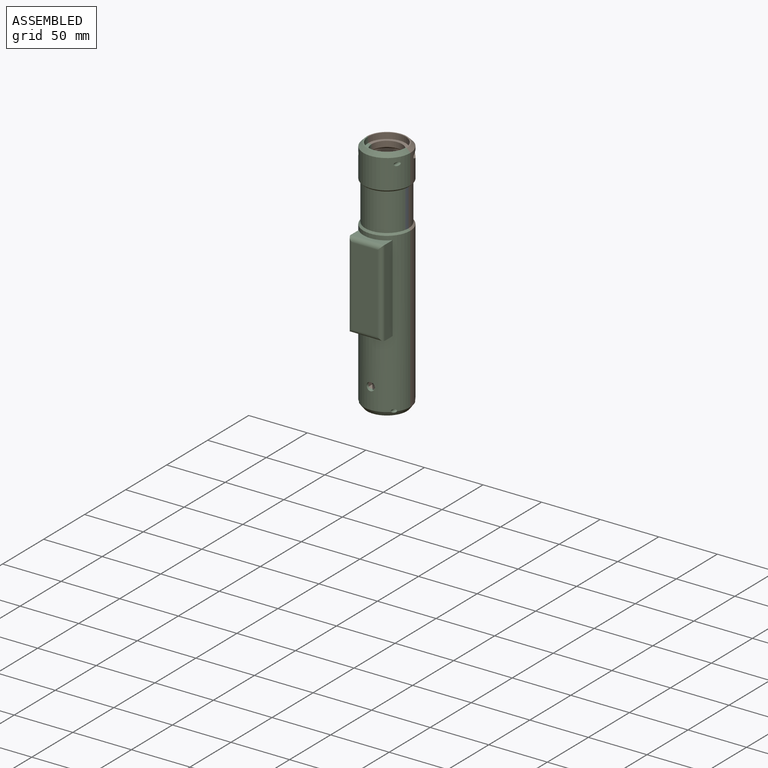
[diagram: assembled view]
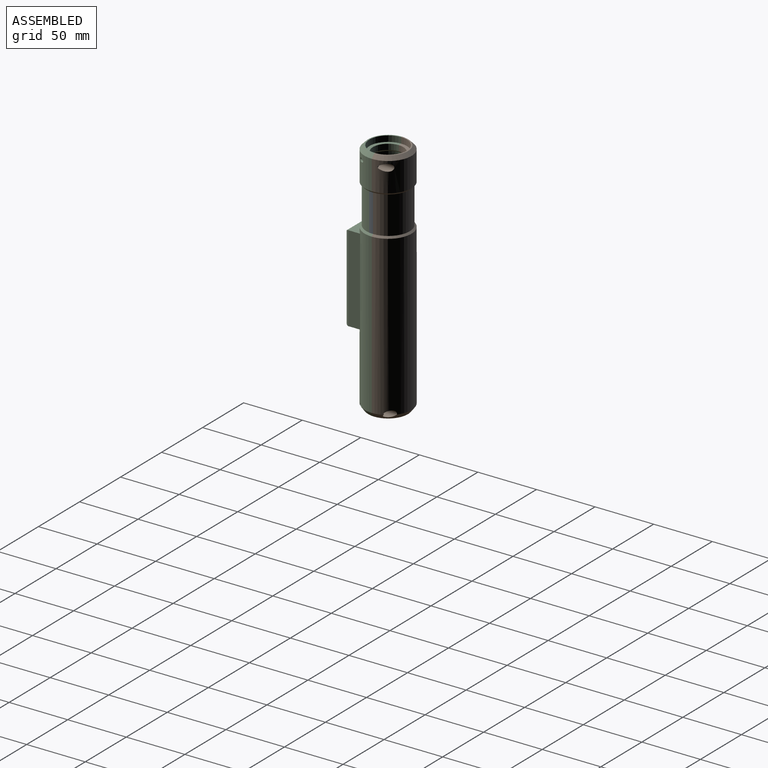
[diagram: assembled view, second angle]
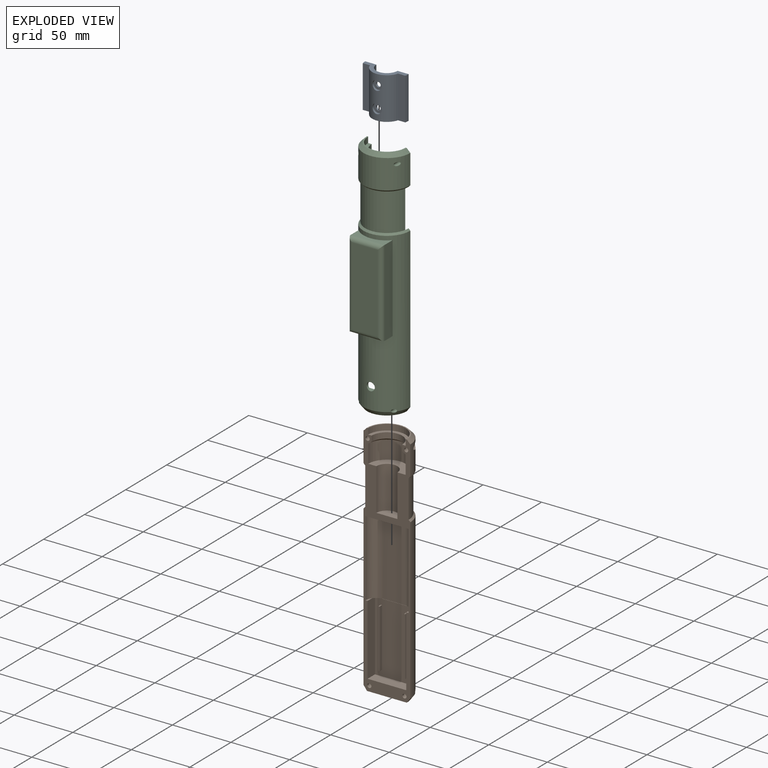
[diagram: exploded view]
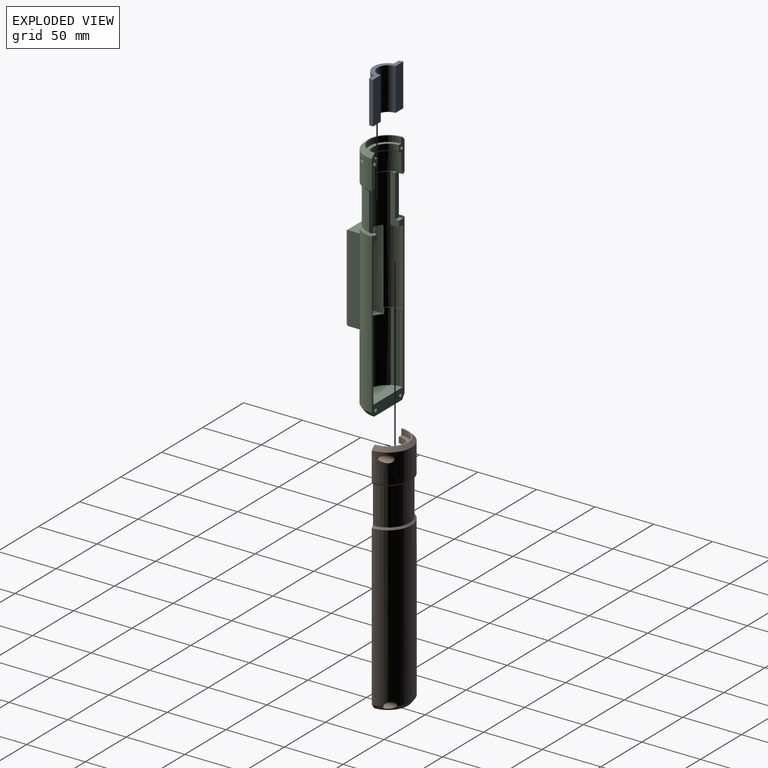
[diagram: exploded view, second angle]
ASSEMBLY  parts=3 mates=4
PART A: 16 faces, bbox 37x12.5x36 mm
  f0: cylinder r=12.5mm len=36mm, axis (0,0,-1), area 1056.4mm2, adj f4,f5,f8,f9,f12,f14
  f1: cylinder r=9mm len=36mm, axis (0,0,-1), area 992.6mm2, adj f2,f7,f8,f9,f10,f11
  f2: plane 36x9.5mm, normal (0,-1,0), area 342mm2, adj f1,f3,f8,f9
  f3: cylinder r=18.5mm len=36mm, axis (0,0,-1), area 126.8mm2, adj f2,f4,f8,f9
  f4: plane 36x6.17mm, normal (0,1,0), area 222mm2, adj f0,f3,f8,f9
  f5: plane 36x6.17mm, normal (0,1,0), area 222mm2, adj f0,f6,f8,f9
  f6: cylinder r=18.5mm len=36mm, axis (0,0,-1), area 126.8mm2, adj f5,f7,f8,f9
  f7: plane 36x9.5mm, normal (0,-1,0), area 342mm2, adj f1,f6,f8,f9
  f8: plane 37x12.5mm, normal (0,0,1), area 160.6mm2, adj f0,f1,f2,f3,f4,f5,f6,f7
  f9: plane 37x12.5mm, normal (0,0,-1), area 160.6mm2, adj f0,f1,f2,f3,f4,f5,f6,f7
  f10: cylinder r=2mm len=4mm, axis (0,1,0), area 20.3mm2, adj f1,f15
  f11: cylinder r=2mm len=4mm, axis (0,1,0), area 20.3mm2, adj f1,f13
  f12: cylinder r=4mm len=8mm, axis (0,1,0), area 42.1mm2, adj f0,f13
  f13: plane 8x8mm, normal (0,1,0), area 37.7mm2, adj f11,f12
  f14: cylinder r=4mm len=8mm, axis (0,1,0), area 42.1mm2, adj f0,f15
  f15: plane 8x8mm, normal (0,1,0), area 37.7mm2, adj f10,f14
PART B: 53 faces, bbox 40x20x203 mm
  f0: plane 203x40mm, normal (0,-1,0), area 2095.5mm2, adj f1,f2,f3,f4,f6,f7,f8,f10
  f1: cylinder r=20mm len=40mm, axis (0,0,1), area 1461.4mm2, adj f0,f38,f43,f45,f52
  f2: cylinder r=20mm len=136mm, axis (0,0,1), area 8491.3mm2, adj f0,f37,f39,f41,f51
  f3: cone r=16mm half-angle=54deg, axis (0,0,-1), area 169mm2, adj f0,f29,f33
  f4: plane 5.6x1.9mm, normal (0,0,1), area 7.3mm2, adj f0,f8,f23
  f5: plane 22.22x0.2mm, normal (0,0,1), area 4.2mm2, adj f8,f9,f10,f26
  f6: plane 34x17mm, normal (0,0,-1), area 454mm2, adj f0,f51
  f7: plane 34x17mm, normal (0,0,1), area 51.8mm2, adj f0,f31,f52
  f8: cylinder r=9.2mm len=65mm, axis (0,0,1), area 939.3mm2, adj f0,f4,f5,f9,f12,f17
  f9: plane 65x18.4mm, normal (0,-1,0), area 1196mm2, adj f5,f8,f10,f12
  f10: cylinder r=9.2mm len=65mm, axis (0,0,1), area 939.3mm2, adj f0,f5,f9,f11,f12,f13
  f11: plane 5.6x1.9mm, normal (0,0,1), area 7.3mm2, adj f0,f10,f18
  f12: plane 36.8x9.2mm, normal (0,0,-1), area 302.2mm2, adj f0,f8,f9,f10
  f13: plane 5.39x3.4mm, normal (0,0,-1), area 6.7mm2, adj f10,f18,f26
  f14: plane 3x1mm, normal (0,0,1), area 3mm2, adj f15,f25,f26,f27
  f15: plane 50x3mm, normal (1,0,0), area 150mm2, adj f14,f16,f26,f27
  f16: plane 3x1mm, normal (0,0,-1), area 3mm2, adj f15,f25,f26,f27
  f17: plane 5.39x3.4mm, normal (0,0,-1), area 6.7mm2, adj f8,f23,f26
  f18: plane 60x9mm, normal (1,0,0), area 540mm2, adj f0,f11,f13,f19,f26
  f19: plane 33x9mm, normal (0,0,1), area 297mm2, adj f0,f18,f23,f26
  f20: plane 3x1mm, normal (0,0,-1), area 3mm2, adj f21,f24,f26,f28
  f21: plane 50x3mm, normal (-1,0,0), area 150mm2, adj f20,f22,f26,f28
  f22: plane 3x1mm, normal (0,0,1), area 3mm2, adj f21,f24,f26,f28
  f23: plane 60x9mm, normal (-1,0,0), area 540mm2, adj f0,f4,f17,f19,f26
  f24: plane 50x3mm, normal (1,0,0), area 150mm2, adj f20,f22,f26,f28
  f25: plane 50x3mm, normal (-1,0,0), area 150mm2, adj f14,f16,f26,f27
  f26: plane 60x33mm, normal (0,-1,0), area 1880mm2, adj f5,f13,f14,f15,f16,f17,f18,f19
  f27: plane 50x1mm, normal (0,-1,0), area 50mm2, adj f14,f15,f16,f25
  f28: plane 50x1mm, normal (0,-1,0), area 50mm2, adj f20,f21,f22,f24
  f29: cylinder r=16mm len=32mm, axis (0,0,-1), area 779.1mm2, adj f0,f3,f30
  f30: plane 32x16mm, normal (0,0,1), area 274.9mm2, adj f0,f29,f34
  f31: cylinder r=16mm len=32mm, axis (0,0,1), area 251.3mm2, adj f0,f7,f32
  f32: plane 32x16mm, normal (0,0,1), area 136.7mm2, adj f0,f31,f33
  f33: cylinder r=13mm len=26mm, axis (0,0,1), area 196.8mm2, adj f0,f3,f32
  f34: cylinder r=9mm len=36mm, axis (0,0,1), area 1017.9mm2, adj f0,f30,f35
  f35: plane 18x9mm, normal (0,0,1), area 127.2mm2, adj f0,f34
  f36: cylinder r=18.5mm len=37mm, axis (0,0,1), area 1859.8mm2, adj f0,f37,f38
  f37: cone r=18.5mm half-angle=45deg, axis (0,0,-1), area 128.3mm2, adj f0,f2,f36
  f38: cone r=20.5mm half-angle=45deg, axis (0,0,1), area 128.3mm2, adj f0,f1,f36
  f39: cylinder r=3mm len=14mm, axis (0,1,0), area 186.5mm2, adj f2,f40,f51
  f40: plane 6x6mm, normal (0,1,0), area 18.7mm2, adj f39,f50
  f41: cylinder r=3mm len=14mm, axis (0,1,0), area 186.5mm2, adj f2,f42,f51
  f42: plane 6x6mm, normal (0,1,0), area 18.7mm2, adj f41,f49
  f43: cylinder r=3mm len=12.76mm, axis (0,1,0), area 160.8mm2, adj f1,f44
  f44: plane 6x6mm, normal (0,1,0), area 18.7mm2, adj f43,f48
  f45: cylinder r=3mm len=12.76mm, axis (0,1,0), area 160.7mm2, adj f1,f46
  f46: plane 6x6mm, normal (0,1,0), area 18.7mm2, adj f45,f47
  f47: cylinder r=1.75mm len=3.5mm, axis (0,1,0), area 22mm2, adj f0,f46
  f48: cylinder r=1.75mm len=3.5mm, axis (0,1,0), area 22mm2, adj f0,f44
  f49: cylinder r=1.75mm len=3.5mm, axis (0,1,0), area 22mm2, adj f0,f42
  f50: cylinder r=1.75mm len=3.5mm, axis (0,1,0), area 22mm2, adj f0,f40
  f51: cone r=20mm half-angle=36.9deg, axis (0,0,1), area 243.8mm2, adj f0,f2,f6,f39,f41
  f52: cone r=17mm half-angle=45deg, axis (0,0,-1), area 246.6mm2, adj f0,f1,f7
PART C: 70 faces, bbox 40x27x203 mm
  f0: cylinder r=18.5mm len=36.33mm, axis (0,0,1), area 1634.5mm2, adj f37,f38,f50,f55
  f1: plane 141.5x40mm, normal (0,-1,0), area 870.6mm2, adj f7,f12,f14,f21,f24,f25,f26,f31
  f2: plane 29.5x7mm, normal (0,-1,0), area 118mm2, adj f6,f8,f15,f33,f34,f35,f36,f38
  f3: plane 31.23x12.5mm, normal (0,0,1), area 28.7mm2, adj f33,f46,f47,f48,f50,f55
  f4: plane 60x0.91mm, normal (0,-1,0), area 54.7mm2, adj f23,f29,f31,f32,f45
  f5: plane 29.5x7mm, normal (0,-1,0), area 118mm2, adj f6,f8,f15,f33,f34,f35,f36,f38
  f6: cylinder r=20mm len=40mm, axis (0,0,1), area 1545.2mm2, adj f2,f5,f38,f41,f42,f69
  f7: cylinder r=20mm len=136mm, axis (0,0,1), area 6090.5mm2, adj f1,f16,f17,f18,f19,f37,f39,f40
  f8: cone r=16mm half-angle=54deg, axis (0,0,-1), area 169mm2, adj f2,f5,f33,f36
  f9: plane 70x9.05mm, normal (1,0,0), area 596.4mm2, adj f10,f13,f21,f25,f45,f61
  f10: plane 26x9.05mm, normal (0,0,1), area 135.7mm2, adj f9,f11,f45,f63
  f11: plane 70x9.05mm, normal (-1,0,0), area 596.4mm2, adj f10,f21,f23,f24,f45,f62
  f12: plane 8.14x1.9mm, normal (0,0,1), area 3.2mm2, adj f1,f24,f32,f43
  f13: plane 4.02x3.05mm, normal (0,0,1), area 1.9mm2, adj f9,f25,f28,f45
  f14: plane 34x17mm, normal (0,0,-1), area 454mm2, adj f1,f68
  f15: plane 34x17mm, normal (0,0,1), area 51.8mm2, adj f2,f5,f34,f69
  f16: plane 74x9.73mm, normal (1,0,0), area 719.7mm2, adj f7,f17,f19,f64
  f17: plane 29x9.73mm, normal (0,0,1), area 157.3mm2, adj f7,f16,f18,f65
  f18: plane 74x9.73mm, normal (-1,0,0), area 719.7mm2, adj f7,f17,f19,f67
  f19: plane 29x9.73mm, normal (0,0,-1), area 157.3mm2, adj f7,f16,f18,f66
  f20: plane 67x22mm, normal (0,1,0), area 1474mm2, adj f64,f65,f66,f67
  f21: plane 36.8x21.5mm, normal (0,0,-1), area 299.1mm2, adj f1,f9,f11,f24,f25,f46,f47,f48
  f22: plane 63x19mm, normal (0,-1,0), area 1197mm2, adj f60,f61,f62,f63
  f23: plane 4.02x3.05mm, normal (0,0,1), area 1.9mm2, adj f4,f11,f24,f45
  f24: cylinder r=18.4mm len=65mm, axis (0,0,1), area 940.3mm2, adj f1,f11,f12,f21,f23,f29
  f25: cylinder r=18.4mm len=65mm, axis (0,0,1), area 940.3mm2, adj f1,f9,f13,f21,f26,f27
  f26: plane 8.14x1.9mm, normal (0,0,1), area 3.2mm2, adj f1,f25,f30,f44
  f27: plane 0.86x0.45mm, normal (0,0,-1), area 0.2mm2, adj f25,f28,f30
  f28: plane 60x0.91mm, normal (0,-1,0), area 54.7mm2, adj f13,f27,f30,f31,f45
  f29: plane 0.86x0.45mm, normal (0,0,-1), area 0.2mm2, adj f4,f24,f32
  f30: plane 60x1.81mm, normal (1,0,0), area 108.4mm2, adj f26,f27,f28,f31,f44
  f31: plane 36x18mm, normal (0,0,1), area 510.5mm2, adj f1,f4,f28,f30,f32,f43,f44,f45
  f32: plane 60x1.81mm, normal (-1,0,0), area 108.4mm2, adj f4,f12,f29,f31,f43
  f33: cylinder r=16mm len=32mm, axis (0,0,-1), area 779.1mm2, adj f2,f3,f5,f8,f53,f58
  f34: cylinder r=16mm len=32mm, axis (0,0,1), area 251.3mm2, adj f2,f5,f15,f35
  f35: plane 32x16mm, normal (0,0,1), area 136.7mm2, adj f2,f5,f34,f36
  f36: cylinder r=13mm len=26mm, axis (0,0,1), area 196.8mm2, adj f2,f5,f8,f35
  f37: cone r=18.5mm half-angle=45deg, axis (0,0,-1), area 128.3mm2, adj f0,f1,f7,f52,f54
  f38: cone r=20.5mm half-angle=45deg, axis (0,0,1), area 128.3mm2, adj f0,f2,f5,f6,f51,f57
  f39: cylinder r=1.5mm len=14.76mm, axis (0,1,0), area 120.9mm2, adj f1,f7,f68
  f40: cylinder r=1.5mm len=14.76mm, axis (0,1,0), area 120.9mm2, adj f1,f7,f68
  f41: cylinder r=1.5mm len=13.23mm, axis (0,1,0), area 105mm2, adj f2,f6
  f42: cylinder r=1.5mm len=13.23mm, axis (0,1,0), area 105mm2, adj f5,f6
  f43: cylinder r=18mm len=60mm, axis (0,0,1), area 444mm2, adj f1,f12,f31,f32
  f44: cylinder r=18mm len=60mm, axis (0,0,1), area 444mm2, adj f1,f26,f30,f31
  f45: cylinder r=18mm len=60mm, axis (0,0,1), area 2078mm2, adj f4,f9,f10,f11,f13,f23,f28,f31
  f46: plane 41x7.62mm, normal (1,0,0), area 186.2mm2, adj f1,f3,f21,f47,f55,f56
  f47: cylinder r=15.5mm len=41mm, axis (0,0,-1), area 1343.7mm2, adj f3,f21,f46,f48
  f48: plane 41x7.62mm, normal (-1,0,0), area 186.2mm2, adj f1,f3,f21,f47,f49,f50
  f49: plane 5x3.5mm, normal (0,0,1), area 17.1mm2, adj f1,f48,f50,f52
  f50: plane 36x4.67mm, normal (0,-1,0), area 168mm2, adj f0,f3,f48,f49,f51,f52,f53
  f51: cylinder r=18.5mm len=3.5mm, axis (0,0,1), area 7mm2, adj f5,f38,f50,f53
  f52: cylinder r=18.5mm len=3.5mm, axis (0,0,1), area 7mm2, adj f1,f37,f49,f50
  f53: plane 3.5x2.89mm, normal (0,0,-1), area 8.8mm2, adj f5,f33,f50,f51
  f54: cylinder r=18.5mm len=3.5mm, axis (0,0,1), area 7mm2, adj f1,f37,f55,f56
  f55: plane 36x4.67mm, normal (0,-1,0), area 168mm2, adj f0,f3,f46,f54,f56,f57,f58
  f56: plane 5x3.5mm, normal (0,0,1), area 17.1mm2, adj f1,f46,f54,f55
  f57: cylinder r=18.5mm len=3.5mm, axis (0,0,1), area 7mm2, adj f2,f38,f55,f58
  f58: plane 3.5x2.89mm, normal (0,0,-1), area 8.8mm2, adj f2,f33,f55,f57
  f59: cylinder r=3.5mm len=7mm, axis (0,-1,0), area 44.4mm2, adj f7,f45
  f60: cylinder r=3.5mm len=26mm, axis (-1,0,0), area 129mm2, adj f21,f22,f61,f62
  f61: cylinder r=3.5mm len=70mm, axis (0,0,-1), area 370.9mm2, adj f9,f22,f60,f63
  f62: cylinder r=3.5mm len=70mm, axis (0,0,1), area 370.9mm2, adj f11,f22,f60,f63
  f63: cylinder r=3.5mm len=26mm, axis (1,0,0), area 129mm2, adj f10,f22,f61,f62
  f64: cylinder r=3.5mm len=74mm, axis (0,0,-1), area 392.9mm2, adj f16,f20,f65,f66
  f65: cylinder r=3.5mm len=29mm, axis (1,0,0), area 145.5mm2, adj f17,f20,f64,f67
  f66: cylinder r=3.5mm len=29mm, axis (-1,0,0), area 145.5mm2, adj f19,f20,f64,f67
  f67: cylinder r=3.5mm len=74mm, axis (0,0,1), area 392.9mm2, adj f18,f20,f65,f66
  f68: cone r=20mm half-angle=36.9deg, axis (0,0,1), area 282.6mm2, adj f1,f7,f14,f39,f40
  f69: cone r=17mm half-angle=45deg, axis (0,0,-1), area 246.6mm2, adj f2,f5,f6,f15
PLACE A rot(axis=(1,0,0),180deg) t=(0.07,-31.45,87.44)mm
PLACE B t=(0.07,-31.45,13.94)mm
PLACE C rot(axis=(0,0,1),180deg) t=(0.07,-31.45,13.94)mm
MATE planar B.f30 <-> A.f3  axis (0,0,1) through (0.07,-23.28,87.44)mm
MATE slider B.f34 <-> A.f1  axis (0,0,1) through (0.07,-31.45,87.44)mm
MATE fastened C.f36 <-> B.f34  axis (0,0,-1) through (0.07,-31.45,-88.06)mm
MATE planar A.f7 <-> B.f0  axis (0,1,0) through (-13.68,-31.45,69.44)mm
